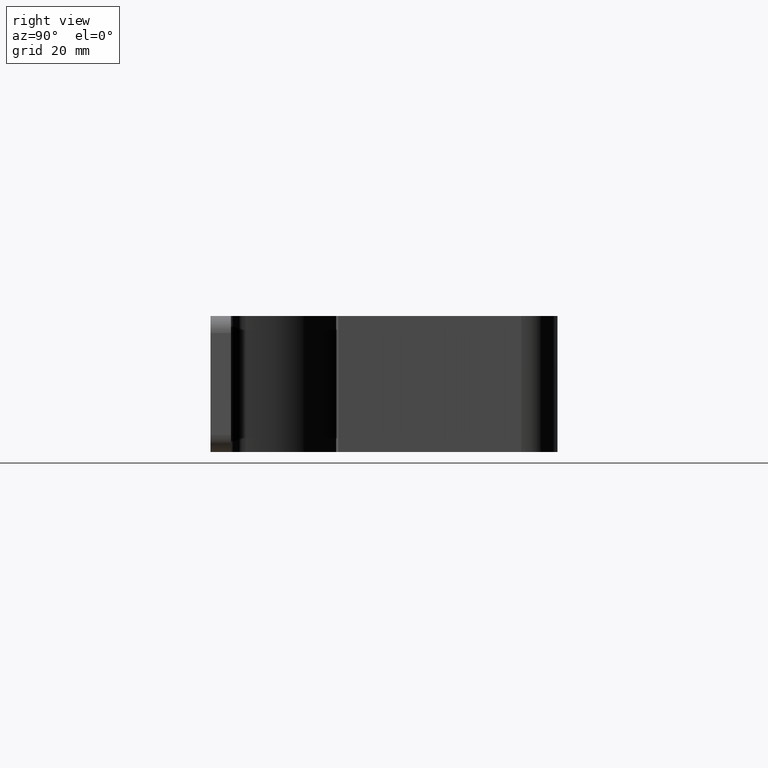
[diagram: clean part render]
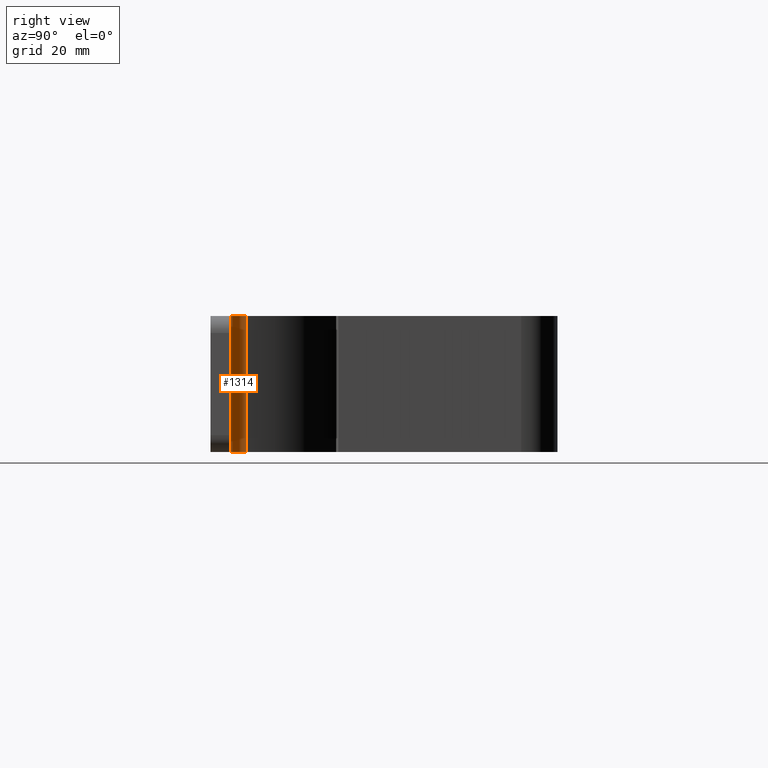
[diagram: same view with one face highlighted and labeled with its STEP entity id]
A machine part, right view. The second image highlights one B-rep face of the part: STEP entity #1314.
In plain terms, the highlighted cylindrical surface (edge-blend (fillet) strip) has radius 6 mm, axis along (0, 0, -1).
Its self-contained STEP definition (entity closure, byte-faithful):
#21 = VERTEX_POINT ( 'NONE', #186 ) ;
#69 = AXIS2_PLACEMENT_3D ( 'NONE', #1588, #331, #1711 ) ;
#186 = CARTESIAN_POINT ( 'NONE',  ( 48.80864485271085584, 12.96017699115037303, 20.00000000000001776 ) ) ;
#229 = DIRECTION ( 'NONE',  ( 0.000000000000000000, 0.000000000000000000, -1.000000000000000000 ) ) ;
#235 = LINE ( 'NONE', #949, #743 ) ;
#331 = DIRECTION ( 'NONE',  ( 0.000000000000000000, 0.000000000000000000, -1.000000000000000000 ) ) ;
#351 = ORIENTED_EDGE ( 'NONE', *, *, #508, .F. ) ;
#363 = DIRECTION ( 'NONE',  ( 0.000000000000000000, 0.000000000000000000, -1.000000000000000000 ) ) ;
#368 = EDGE_CURVE ( 'NONE', #651, #539, #477, .T. ) ;
#462 = DIRECTION ( 'NONE',  ( 0.000000000000000000, 0.000000000000000000, 1.000000000000000000 ) ) ;
#468 = CARTESIAN_POINT ( 'NONE',  ( 48.80864485271085584, 12.96017699115037303, -20.00000000000001776 ) ) ;
#477 = LINE ( 'NONE', #902, #1409 ) ;
#508 = EDGE_CURVE ( 'NONE', #21, #811, #235, .T. ) ;
#539 = VERTEX_POINT ( 'NONE', #1235 ) ;
#611 = EDGE_CURVE ( 'NONE', #811, #539, #1755, .T. ) ;
#651 = VERTEX_POINT ( 'NONE', #1106 ) ;
#709 = ORIENTED_EDGE ( 'NONE', *, *, #1662, .T. ) ;
#710 = DIRECTION ( 'NONE',  ( 1.000000000000000000, 5.782411586589344820E-16, 0.000000000000000000 ) ) ;
#743 = VECTOR ( 'NONE', #363, 1000.000000000000000 ) ;
#811 = VERTEX_POINT ( 'NONE', #468 ) ;
#839 = EDGE_LOOP ( 'NONE', ( #1052, #351, #709, #1258 ) ) ;
#902 = CARTESIAN_POINT ( 'NONE',  ( 54.60769176590418539, 8.499999999999619860, 20.00000000000001776 ) ) ;
#949 = CARTESIAN_POINT ( 'NONE',  ( 48.80864485271085584, 12.96017699115037303, 20.00000000000001776 ) ) ;
#1052 = ORIENTED_EDGE ( 'NONE', *, *, #611, .F. ) ;
#1094 = AXIS2_PLACEMENT_3D ( 'NONE', #1608, #1488, #1350 ) ;
#1106 = CARTESIAN_POINT ( 'NONE',  ( 54.60769176590418539, 8.499999999999619860, 20.00000000000001776 ) ) ;
#1168 = CYLINDRICAL_SURFACE ( 'NONE', #69, 6.000000000000012434 ) ;
#1235 = CARTESIAN_POINT ( 'NONE',  ( 54.60769176590418539, 8.499999999999619860, -20.00000000000001776 ) ) ;
#1258 = ORIENTED_EDGE ( 'NONE', *, *, #368, .T. ) ;
#1297 = FACE_OUTER_BOUND ( 'NONE', #839, .T. ) ;
#1314 = ADVANCED_FACE ( 'NONE', ( #1297 ), #1168, .F. ) ;
#1350 = DIRECTION ( 'NONE',  ( 1.000000000000000000, 5.782411586589344820E-16, 0.000000000000000000 ) ) ;
#1394 = CARTESIAN_POINT ( 'NONE',  ( 54.60769176590418539, 14.49999999999962341, 20.00000000000001776 ) ) ;
#1409 = VECTOR ( 'NONE', #229, 1000.000000000000000 ) ;
#1488 = DIRECTION ( 'NONE',  ( 0.000000000000000000, 0.000000000000000000, 1.000000000000000000 ) ) ;
#1496 = AXIS2_PLACEMENT_3D ( 'NONE', #1394, #462, #710 ) ;
#1588 = CARTESIAN_POINT ( 'NONE',  ( 54.60769176590418539, 14.49999999999962341, 20.00000000000001776 ) ) ;
#1608 = CARTESIAN_POINT ( 'NONE',  ( 54.60769176590418539, 14.49999999999962341, -20.00000000000001776 ) ) ;
#1662 = EDGE_CURVE ( 'NONE', #21, #651, #1672, .T. ) ;
#1672 = CIRCLE ( 'NONE', #1496, 6.000000000000012434 ) ;
#1711 = DIRECTION ( 'NONE',  ( -1.000000000000000000, -5.782411586589344820E-16, 0.000000000000000000 ) ) ;
#1755 = CIRCLE ( 'NONE', #1094, 6.000000000000012434 ) ;